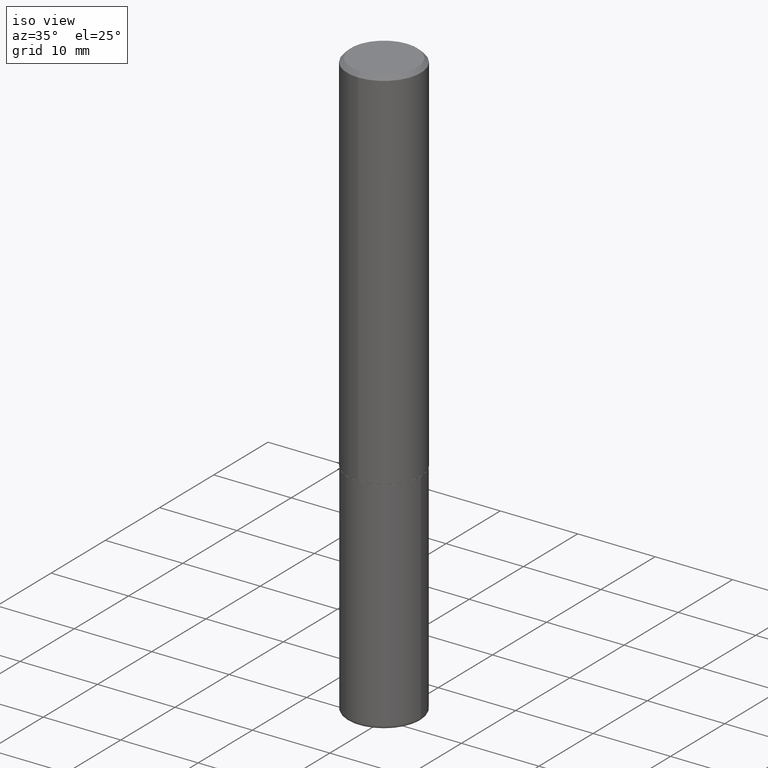
[diagram: clean part render]
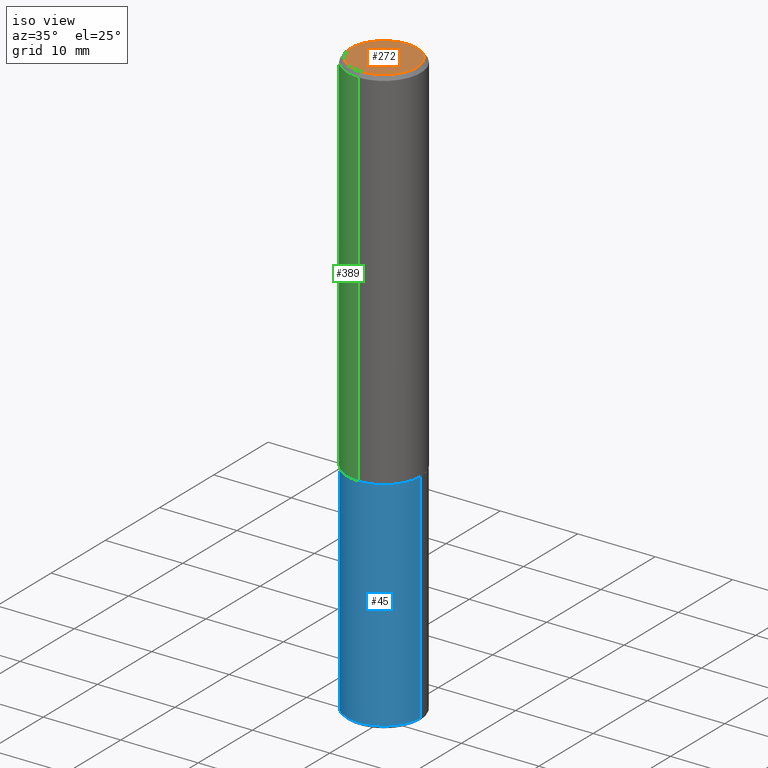
[diagram: same view with three faces highlighted in distinct colors, each labeled with its STEP entity id]
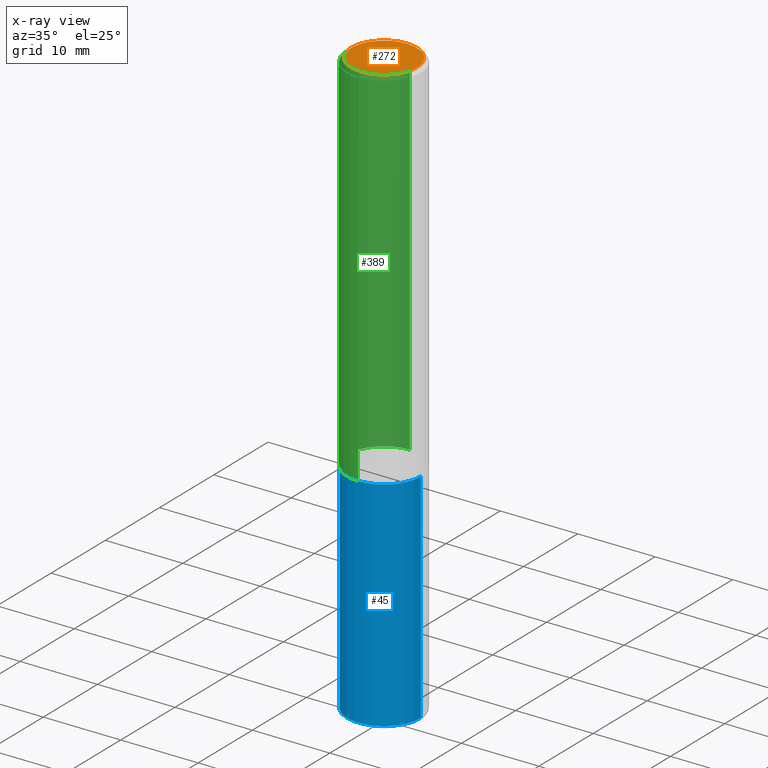
[diagram: x-ray of the same camera — body ghosted, the three highlighted faces saturated]
A machine part, iso view with three faces highlighted in distinct colors.
The next image is the same camera in x-ray (body ghosted, the three faces saturated) — at least one of them is partly hidden behind the body in this view.
Their STEP definitions:

[orange] entity #272 — the highlighted planar face has unit normal (0, -0, -1).
#2 = CARTESIAN_POINT ( 'NONE',  ( 1.774244268543582685E-45, -2.533246014083036310E-31, -7.255368094819153633E-17 ) ) ;
#7 = DIRECTION ( 'NONE',  ( -6.982962677686264344E-15, -1.000000000000000000, 3.491547197849207244E-15 ) ) ;
#9 = DIRECTION ( 'NONE',  ( 6.982962677686265922E-15, 1.000000000000000000, -3.491547197849208033E-15 ) ) ;
#10 = EDGE_LOOP ( 'NONE', ( #252, #114 ) ) ;
#73 = VERTEX_POINT ( 'NONE', #226 ) ;
#97 = CARTESIAN_POINT ( 'NONE',  ( 1.239475875289312499E-15, 0.1675000000000000655, -6.573878365879339248E-16 ) ) ;
#103 = AXIS2_PLACEMENT_3D ( 'NONE', #207, #144, #9 ) ;
#114 = ORIENTED_EDGE ( 'NONE', *, *, #365, .T. ) ;
#144 = DIRECTION ( 'NONE',  ( 2.445422817087003844E-29, -3.491547197849208033E-15, -1.000000000000000000 ) ) ;
#183 = CIRCLE ( 'NONE', #293, 0.1675000000000000655 ) ;
#207 = CARTESIAN_POINT ( 'NONE',  ( 1.169646248512449792E-15, 0.1675000000000000655, -6.211109961138383353E-16 ) ) ;
#214 = VERTEX_POINT ( 'NONE', #97 ) ;
#226 = CARTESIAN_POINT ( 'NONE',  ( -1.217738394604446442E-15, -0.1675000000000000655, 5.122804746915509754E-16 ) ) ;
#235 = FACE_OUTER_BOUND ( 'NONE', #10, .T. ) ;
#239 = PLANE ( 'NONE',  #103 ) ;
#245 = DIRECTION ( 'NONE',  ( -6.982962677686264344E-15, -1.000000000000000000, 3.491547197849207244E-15 ) ) ;
#252 = ORIENTED_EDGE ( 'NONE', *, *, #286, .T. ) ;
#272 = ADVANCED_FACE ( 'NONE', ( #235 ), #239, .F. ) ;
#274 = CARTESIAN_POINT ( 'NONE',  ( 1.774244268543582685E-45, -2.533246014083036310E-31, -7.255368094819153633E-17 ) ) ;
#286 = EDGE_CURVE ( 'NONE', #214, #73, #183, .T. ) ;
#293 = AXIS2_PLACEMENT_3D ( 'NONE', #274, #395, #245 ) ;
#303 = DIRECTION ( 'NONE',  ( -2.445422817087004124E-29, 3.491547197849208033E-15, 1.000000000000000000 ) ) ;
#316 = AXIS2_PLACEMENT_3D ( 'NONE', #2, #303, #7 ) ;
#365 = EDGE_CURVE ( 'NONE', #73, #214, #397, .T. ) ;
#395 = DIRECTION ( 'NONE',  ( -2.445422817087004124E-29, 3.491547197849208033E-15, 1.000000000000000000 ) ) ;
#397 = CIRCLE ( 'NONE', #316, 0.1675000000000000655 ) ;

[blue] entity #45 — the highlighted cylindrical surface (partial cylindrical patch) has radius 4.7625 mm, axis along (-0, 0, 1).
#16 = EDGE_CURVE ( 'NONE', #223, #51, #372, .T. ) ;
#19 = DIRECTION ( 'NONE',  ( 1.000000000000000000, -6.982962677686266711E-15, 4.876176775795935793E-29 ) ) ;
#39 = EDGE_CURVE ( 'NONE', #221, #338, #128, .T. ) ;
#45 = ADVANCED_FACE ( 'NONE', ( #289 ), #58, .T. ) ;
#51 = VERTEX_POINT ( 'NONE', #125 ) ;
#53 = CARTESIAN_POINT ( 'NONE',  ( -0.1874999999999999722, 1.332267629550187651E-15, -9.223003294227946589E-30 ) ) ;
#58 = CYLINDRICAL_SURFACE ( 'NONE', #366, 0.1874999999999999722 ) ;
#63 = AXIS2_PLACEMENT_3D ( 'NONE', #185, #122, #127 ) ;
#67 = EDGE_CURVE ( 'NONE', #338, #51, #383, .T. ) ;
#85 = DIRECTION ( 'NONE',  ( -2.445468806185136597E-29, 3.491481338843145583E-15, 1.000000000000000000 ) ) ;
#122 = DIRECTION ( 'NONE',  ( -2.445468806185136597E-29, 3.491481338843145583E-15, 1.000000000000000000 ) ) ;
#125 = CARTESIAN_POINT ( 'NONE',  ( 0.1875000000000000278, -7.855833012397073715E-15, -1.875000000000000000 ) ) ;
#127 = DIRECTION ( 'NONE',  ( 1.000000000000000000, -6.982962677686263555E-15, 0.000000000000000000 ) ) ;
#128 = LINE ( 'NONE', #53, #182 ) ;
#148 = EDGE_CURVE ( 'NONE', #221, #223, #376, .T. ) ;
#157 = DIRECTION ( 'NONE',  ( -2.445468806185136877E-29, 3.491481338843145188E-15, 1.000000000000000000 ) ) ;
#162 = VECTOR ( 'NONE', #157, 39.37007874015748143 ) ;
#173 = CARTESIAN_POINT ( 'NONE',  ( -0.1875000000000000278, -7.152032023838655550E-15, -1.875000000000000000 ) ) ;
#182 = VECTOR ( 'NONE', #296, 39.37007874015748143 ) ;
#185 = CARTESIAN_POINT ( 'NONE',  ( 7.299724386462632472E-29, -1.042207179644678967E-14, -2.984999999999999876 ) ) ;
#221 = VERTEX_POINT ( 'NONE', #288 ) ;
#223 = VERTEX_POINT ( 'NONE', #257 ) ;
#257 = CARTESIAN_POINT ( 'NONE',  ( 0.1874999999999999167, -1.173137729851296152E-14, -2.984999999999999876 ) ) ;
#263 = DIRECTION ( 'NONE',  ( 1.000000000000000000, -6.982962677686266711E-15, 0.000000000000000000 ) ) ;
#268 = ORIENTED_EDGE ( 'NONE', *, *, #148, .T. ) ;
#288 = CARTESIAN_POINT ( 'NONE',  ( -0.1874999999999999167, -9.089804166896601820E-15, -2.984999999999999876 ) ) ;
#289 = FACE_OUTER_BOUND ( 'NONE', #318, .T. ) ;
#291 = ORIENTED_EDGE ( 'NONE', *, *, #39, .F. ) ;
#296 = DIRECTION ( 'NONE',  ( -2.445468806185136877E-29, 3.491481338843145188E-15, 1.000000000000000000 ) ) ;
#318 = EDGE_LOOP ( 'NONE', ( #291, #268, #398, #399 ) ) ;
#338 = VERTEX_POINT ( 'NONE', #173 ) ;
#339 = AXIS2_PLACEMENT_3D ( 'NONE', #374, #409, #263 ) ;
#366 = AXIS2_PLACEMENT_3D ( 'NONE', #369, #85, #19 ) ;
#369 = CARTESIAN_POINT ( 'NONE',  ( 0.000000000000000000, 0.000000000000000000, 0.000000000000000000 ) ) ;
#372 = LINE ( 'NONE', #414, #162 ) ;
#374 = CARTESIAN_POINT ( 'NONE',  ( 4.585254011597131119E-29, -6.546527510330898707E-15, -1.875000000000000000 ) ) ;
#376 = CIRCLE ( 'NONE', #63, 0.1874999999999999722 ) ;
#383 = CIRCLE ( 'NONE', #339, 0.1875000000000000278 ) ;
#398 = ORIENTED_EDGE ( 'NONE', *, *, #16, .T. ) ;
#399 = ORIENTED_EDGE ( 'NONE', *, *, #67, .F. ) ;
#409 = DIRECTION ( 'NONE',  ( -2.445468806185136597E-29, 3.491481338843145583E-15, 1.000000000000000000 ) ) ;
#414 = CARTESIAN_POINT ( 'NONE',  ( 0.1874999999999999722, -1.309305502066174811E-15, 9.142831454617378210E-30 ) ) ;

[green] entity #389 — the highlighted cylindrical surface (partial cylindrical patch) has radius 4.7625 mm, axis along (-0, 0, 1).
#12 = VERTEX_POINT ( 'NONE', #61 ) ;
#21 = VECTOR ( 'NONE', #139, 39.37007874015748143 ) ;
#24 = ORIENTED_EDGE ( 'NONE', *, *, #371, .F. ) ;
#27 = VERTEX_POINT ( 'NONE', #192 ) ;
#34 = LINE ( 'NONE', #368, #88 ) ;
#61 = CARTESIAN_POINT ( 'NONE',  ( -1.286343374582161379E-15, -0.1875000000000000555, -0.01999999999999938979 ) ) ;
#64 = AXIS2_PLACEMENT_3D ( 'NONE', #71, #354, #65 ) ;
#65 = DIRECTION ( 'NONE',  ( -6.982962677686265922E-15, -1.000000000000000000, 2.913971193241877611E-15 ) ) ;
#71 = CARTESIAN_POINT ( 'NONE',  ( 4.582722359221045613E-29, -6.543159448769415354E-15, -1.874000000000000110 ) ) ;
#88 = VECTOR ( 'NONE', #228, 39.37007874015748143 ) ;
#99 = EDGE_CURVE ( 'NONE', #27, #12, #34, .T. ) ;
#111 = LINE ( 'NONE', #180, #21 ) ;
#116 = CIRCLE ( 'NONE', #238, 0.1874999999999999722 ) ;
#139 = DIRECTION ( 'NONE',  ( -2.445422817087003844E-29, 3.491547197849208033E-15, 1.000000000000000000 ) ) ;
#141 = CARTESIAN_POINT ( 'NONE',  ( 4.890845634174019353E-31, -6.983094395698430266E-17, -0.02000000000000004205 ) ) ;
#180 = CARTESIAN_POINT ( 'NONE',  ( 1.332267629550188243E-15, 0.1875000000000000833, -6.546650995967267527E-16 ) ) ;
#184 = ORIENTED_EDGE ( 'NONE', *, *, #99, .T. ) ;
#189 = DIRECTION ( 'NONE',  ( -6.982962677686266711E-15, -1.000000000000000000, 3.491547197849207639E-15 ) ) ;
#192 = CARTESIAN_POINT ( 'NONE',  ( -1.309305502066130438E-15, -0.1875000000000067446, -1.873999999999999444 ) ) ;
#213 = ORIENTED_EDGE ( 'NONE', *, *, #297, .T. ) ;
#215 = FACE_OUTER_BOUND ( 'NONE', #304, .T. ) ;
#217 = CIRCLE ( 'NONE', #64, 0.1875000000000001943 ) ;
#228 = DIRECTION ( 'NONE',  ( -2.445422817087003844E-29, 3.491547197849208033E-15, 1.000000000000000000 ) ) ;
#238 = AXIS2_PLACEMENT_3D ( 'NONE', #141, #360, #342 ) ;
#246 = CARTESIAN_POINT ( 'NONE',  ( 1.309305502066175205E-15, 0.1874999999999999167, -0.02000000000000069431 ) ) ;
#250 = EDGE_CURVE ( 'NONE', #251, #295, #111, .T. ) ;
#251 = VERTEX_POINT ( 'NONE', #270 ) ;
#259 = DIRECTION ( 'NONE',  ( -2.445422817087004124E-29, 3.491547197849208033E-15, 1.000000000000000000 ) ) ;
#270 = CARTESIAN_POINT ( 'NONE',  ( 1.332267629550211909E-15, 0.1874999999999936162, -1.874000000000000554 ) ) ;
#295 = VERTEX_POINT ( 'NONE', #246 ) ;
#297 = EDGE_CURVE ( 'NONE', #251, #27, #217, .T. ) ;
#304 = EDGE_LOOP ( 'NONE', ( #380, #213, #184, #24 ) ) ;
#342 = DIRECTION ( 'NONE',  ( -6.982962677686266711E-15, -1.000000000000000000, 3.483106191921935949E-15 ) ) ;
#354 = DIRECTION ( 'NONE',  ( -2.445422817087004124E-29, 3.491547197849208033E-15, 1.000000000000000000 ) ) ;
#360 = DIRECTION ( 'NONE',  ( -2.445422817087004124E-29, 3.491547197849208033E-15, 1.000000000000000000 ) ) ;
#361 = AXIS2_PLACEMENT_3D ( 'NONE', #400, #259, #189 ) ;
#368 = CARTESIAN_POINT ( 'NONE',  ( -1.309305502066175600E-15, -0.1875000000000000833, 6.546650995967267527E-16 ) ) ;
#371 = EDGE_CURVE ( 'NONE', #295, #12, #116, .T. ) ;
#380 = ORIENTED_EDGE ( 'NONE', *, *, #250, .F. ) ;
#389 = ADVANCED_FACE ( 'NONE', ( #215 ), #407, .T. ) ;
#400 = CARTESIAN_POINT ( 'NONE',  ( 0.000000000000000000, 0.000000000000000000, 0.000000000000000000 ) ) ;
#407 = CYLINDRICAL_SURFACE ( 'NONE', #361, 0.1875000000000000833 ) ;